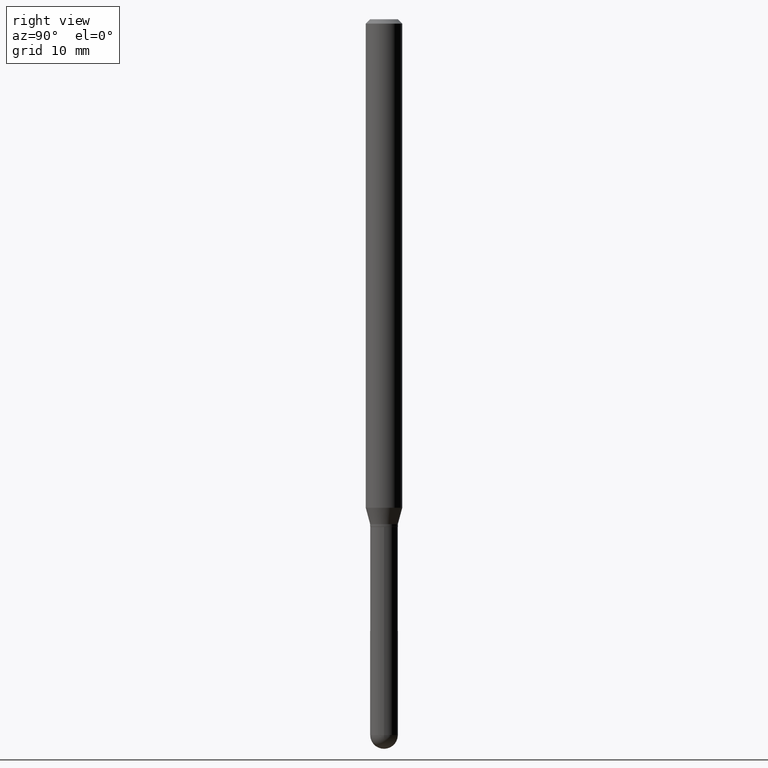
[diagram: clean part render]
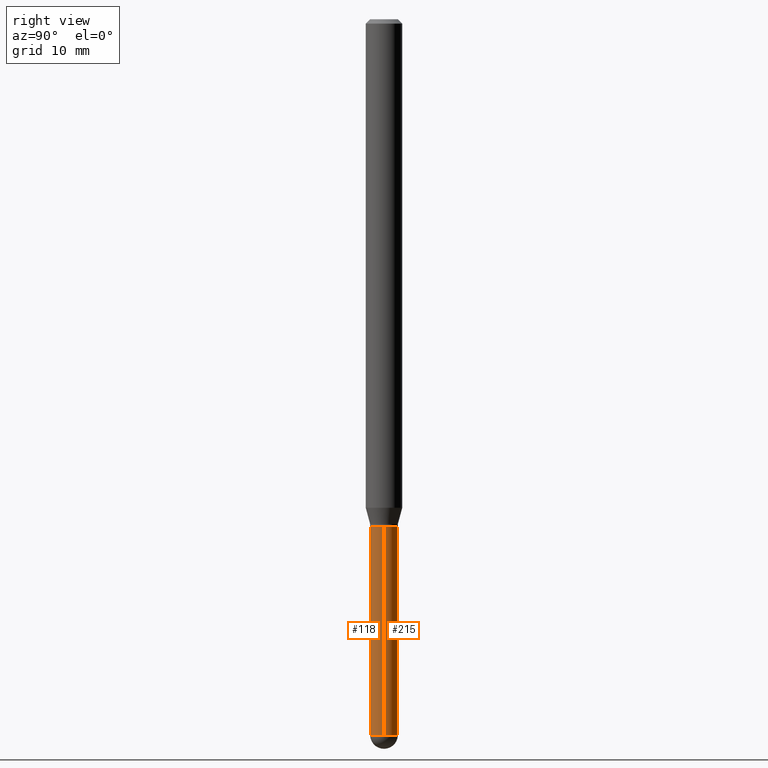
[diagram: same view with one multi-face feature highlighted, each face labeled with its STEP entity id]
A machine part, right view. The highlighted faces form ONE feature: a constant-radius fillet chain: 2 tangent blend faces with common blend radius 1.2065 mm. The faces share edges in the B-rep.
Their STEP definitions:
[1] entity #215 (Cylinder):
#7 = DIRECTION ( 'NONE',  ( -2.445468806185136877E-29, 3.491481338843145188E-15, 1.000000000000000000 ) ) ;
#30 = CARTESIAN_POINT ( 'NONE',  ( 0.000000000000000000, 0.000000000000000000, 0.000000000000000000 ) ) ;
#38 = LINE ( 'NONE', #351, #449 ) ;
#84 = DIRECTION ( 'NONE',  ( 1.000000000000000000, -6.982962677686280910E-15, 0.000000000000000000 ) ) ;
#86 = CIRCLE ( 'NONE', #212, 0.04750000000000000749 ) ;
#111 = FACE_OUTER_BOUND ( 'NONE', #477, .T. ) ;
#120 = ORIENTED_EDGE ( 'NONE', *, *, #414, .T. ) ;
#139 = DIRECTION ( 'NONE',  ( -2.445468806185136877E-29, 3.491481338843145188E-15, 1.000000000000000000 ) ) ;
#146 = CARTESIAN_POINT ( 'NONE',  ( -0.04750000000000000749, -6.981509957063897703E-15, -2.452500000000000124 ) ) ;
#161 = ORIENTED_EDGE ( 'NONE', *, *, #352, .F. ) ;
#170 = AXIS2_PLACEMENT_3D ( 'NONE', #30, #427, #340 ) ;
#189 = VERTEX_POINT ( 'NONE', #467 ) ;
#212 = AXIS2_PLACEMENT_3D ( 'NONE', #387, #474, #273 ) ;
#215 = ADVANCED_FACE ( 'NONE', ( #111 ), #217, .T. ) ;
#217 = CYLINDRICAL_SURFACE ( 'NONE', #170, 0.04750000000000000749 ) ;
#227 = DIRECTION ( 'NONE',  ( -2.445468806185136597E-29, 3.491481338843145583E-15, 1.000000000000000000 ) ) ;
#231 = CARTESIAN_POINT ( 'NONE',  ( 4.255115722762138620E-29, -6.075177529587074600E-15, -1.740000000000000213 ) ) ;
#264 = DIRECTION ( 'NONE',  ( -2.445468806185136597E-29, 3.491481338843145583E-15, 1.000000000000000000 ) ) ;
#267 = CARTESIAN_POINT ( 'NONE',  ( 5.997512247169047773E-29, -8.562857983512815004E-15, -2.452500000000000124 ) ) ;
#268 = EDGE_CURVE ( 'NONE', #487, #348, #502, .T. ) ;
#269 = VERTEX_POINT ( 'NONE', #146 ) ;
#273 = DIRECTION ( 'NONE',  ( 1.000000000000000000, -6.982962677686280910E-15, 0.000000000000000000 ) ) ;
#274 = VERTEX_POINT ( 'NONE', #291 ) ;
#275 = CIRCLE ( 'NONE', #475, 0.04749999999999999362 ) ;
#291 = CARTESIAN_POINT ( 'NONE',  ( 3.316907271901575630E-16, 0.04749999999999143102, -2.452500000000000568 ) ) ;
#292 = CIRCLE ( 'NONE', #359, 0.04750000000000000749 ) ;
#334 = EDGE_CURVE ( 'NONE', #487, #274, #86, .T. ) ;
#340 = DIRECTION ( 'NONE',  ( 1.000000000000000000, -6.982962677686266711E-15, 4.876176775795934672E-29 ) ) ;
#348 = VERTEX_POINT ( 'NONE', #438 ) ;
#351 = CARTESIAN_POINT ( 'NONE',  ( -0.04750000000000000749, 3.375077994860476415E-16, -2.336494167871080260E-30 ) ) ;
#352 = EDGE_CURVE ( 'NONE', #348, #189, #275, .T. ) ;
#359 = AXIS2_PLACEMENT_3D ( 'NONE', #267, #227, #84 ) ;
#372 = EDGE_CURVE ( 'NONE', #274, #269, #292, .T. ) ;
#378 = CARTESIAN_POINT ( 'NONE',  ( 0.04750000000000000749, -3.316907271900977082E-16, 2.316183968503069432E-30 ) ) ;
#385 = ORIENTED_EDGE ( 'NONE', *, *, #334, .T. ) ;
#387 = CARTESIAN_POINT ( 'NONE',  ( 5.997512247169047773E-29, -8.562857983512815004E-15, -2.452500000000000124 ) ) ;
#408 = ORIENTED_EDGE ( 'NONE', *, *, #372, .T. ) ;
#414 = EDGE_CURVE ( 'NONE', #269, #189, #38, .T. ) ;
#423 = VECTOR ( 'NONE', #139, 39.37007874015748143 ) ;
#427 = DIRECTION ( 'NONE',  ( -2.445468806185136597E-29, 3.491481338843145583E-15, 1.000000000000000000 ) ) ;
#435 = DIRECTION ( 'NONE',  ( 1.000000000000000000, -6.982962677686261977E-15, 0.000000000000000000 ) ) ;
#438 = CARTESIAN_POINT ( 'NONE',  ( 0.04749999999999999362, -6.406868256777172111E-15, -1.740000000000000213 ) ) ;
#449 = VECTOR ( 'NONE', #7, 39.37007874015748143 ) ;
#467 = CARTESIAN_POINT ( 'NONE',  ( -0.04749999999999999362, -6.981509957063897703E-15, -1.740000000000000213 ) ) ;
#474 = DIRECTION ( 'NONE',  ( -2.445468806185136597E-29, 3.491481338843145583E-15, 1.000000000000000000 ) ) ;
#475 = AXIS2_PLACEMENT_3D ( 'NONE', #231, #264, #435 ) ;
#477 = EDGE_LOOP ( 'NONE', ( #408, #120, #161, #511, #385 ) ) ;
#487 = VERTEX_POINT ( 'NONE', #498 ) ;
#498 = CARTESIAN_POINT ( 'NONE',  ( 0.04750000000000000749, -7.650708483740042707E-15, -2.452500000000000124 ) ) ;
#502 = LINE ( 'NONE', #378, #423 ) ;
#511 = ORIENTED_EDGE ( 'NONE', *, *, #268, .F. ) ;
[2] entity #118 (Cylinder):
#5 = AXIS2_PLACEMENT_3D ( 'NONE', #134, #452, #204 ) ;
#7 = DIRECTION ( 'NONE',  ( -2.445468806185136877E-29, 3.491481338843145188E-15, 1.000000000000000000 ) ) ;
#21 = CYLINDRICAL_SURFACE ( 'NONE', #5, 0.04750000000000000749 ) ;
#27 = VERTEX_POINT ( 'NONE', #380 ) ;
#31 = AXIS2_PLACEMENT_3D ( 'NONE', #331, #34, #328 ) ;
#33 = CARTESIAN_POINT ( 'NONE',  ( 4.255115722762138620E-29, -6.075177529587074600E-15, -1.740000000000000213 ) ) ;
#34 = DIRECTION ( 'NONE',  ( -2.445468806185136597E-29, 3.491481338843145583E-15, 1.000000000000000000 ) ) ;
#38 = LINE ( 'NONE', #351, #449 ) ;
#46 = DIRECTION ( 'NONE',  ( 1.000000000000000000, -6.982962677686280910E-15, 0.000000000000000000 ) ) ;
#47 = ORIENTED_EDGE ( 'NONE', *, *, #64, .F. ) ;
#57 = ORIENTED_EDGE ( 'NONE', *, *, #208, .T. ) ;
#59 = ORIENTED_EDGE ( 'NONE', *, *, #268, .T. ) ;
#64 = EDGE_CURVE ( 'NONE', #189, #348, #197, .T. ) ;
#92 = CARTESIAN_POINT ( 'NONE',  ( 5.997512247169047773E-29, -8.562857983512815004E-15, -2.452500000000000124 ) ) ;
#102 = AXIS2_PLACEMENT_3D ( 'NONE', #33, #459, #178 ) ;
#118 = ADVANCED_FACE ( 'NONE', ( #411 ), #21, .T. ) ;
#134 = CARTESIAN_POINT ( 'NONE',  ( 0.000000000000000000, 0.000000000000000000, 0.000000000000000000 ) ) ;
#139 = DIRECTION ( 'NONE',  ( -2.445468806185136877E-29, 3.491481338843145188E-15, 1.000000000000000000 ) ) ;
#146 = CARTESIAN_POINT ( 'NONE',  ( -0.04750000000000000749, -6.981509957063897703E-15, -2.452500000000000124 ) ) ;
#159 = EDGE_CURVE ( 'NONE', #269, #27, #310, .T. ) ;
#178 = DIRECTION ( 'NONE',  ( 1.000000000000000000, -6.982962677686261977E-15, 0.000000000000000000 ) ) ;
#189 = VERTEX_POINT ( 'NONE', #467 ) ;
#197 = CIRCLE ( 'NONE', #102, 0.04749999999999999362 ) ;
#204 = DIRECTION ( 'NONE',  ( 1.000000000000000000, -6.982962677686266711E-15, 4.876176775795934672E-29 ) ) ;
#208 = EDGE_CURVE ( 'NONE', #27, #487, #391, .T. ) ;
#268 = EDGE_CURVE ( 'NONE', #487, #348, #502, .T. ) ;
#269 = VERTEX_POINT ( 'NONE', #146 ) ;
#284 = ORIENTED_EDGE ( 'NONE', *, *, #414, .F. ) ;
#308 = ORIENTED_EDGE ( 'NONE', *, *, #159, .T. ) ;
#310 = CIRCLE ( 'NONE', #317, 0.04750000000000000749 ) ;
#317 = AXIS2_PLACEMENT_3D ( 'NONE', #92, #400, #46 ) ;
#318 = EDGE_LOOP ( 'NONE', ( #284, #308, #57, #59, #47 ) ) ;
#328 = DIRECTION ( 'NONE',  ( 1.000000000000000000, -6.982962677686280910E-15, 0.000000000000000000 ) ) ;
#331 = CARTESIAN_POINT ( 'NONE',  ( 5.997512247169047773E-29, -8.562857983512815004E-15, -2.452500000000000124 ) ) ;
#348 = VERTEX_POINT ( 'NONE', #438 ) ;
#351 = CARTESIAN_POINT ( 'NONE',  ( -0.04750000000000000749, 3.375077994860476415E-16, -2.336494167871080260E-30 ) ) ;
#378 = CARTESIAN_POINT ( 'NONE',  ( 0.04750000000000000749, -3.316907271900977082E-16, 2.316183968503069432E-30 ) ) ;
#380 = CARTESIAN_POINT ( 'NONE',  ( -3.375077994859875895E-16, -0.04750000000000855621, -2.452499999999999680 ) ) ;
#391 = CIRCLE ( 'NONE', #31, 0.04750000000000000749 ) ;
#400 = DIRECTION ( 'NONE',  ( -2.445468806185136597E-29, 3.491481338843145583E-15, 1.000000000000000000 ) ) ;
#411 = FACE_OUTER_BOUND ( 'NONE', #318, .T. ) ;
#414 = EDGE_CURVE ( 'NONE', #269, #189, #38, .T. ) ;
#423 = VECTOR ( 'NONE', #139, 39.37007874015748143 ) ;
#438 = CARTESIAN_POINT ( 'NONE',  ( 0.04749999999999999362, -6.406868256777172111E-15, -1.740000000000000213 ) ) ;
#449 = VECTOR ( 'NONE', #7, 39.37007874015748143 ) ;
#452 = DIRECTION ( 'NONE',  ( -2.445468806185136597E-29, 3.491481338843145583E-15, 1.000000000000000000 ) ) ;
#459 = DIRECTION ( 'NONE',  ( -2.445468806185136597E-29, 3.491481338843145583E-15, 1.000000000000000000 ) ) ;
#467 = CARTESIAN_POINT ( 'NONE',  ( -0.04749999999999999362, -6.981509957063897703E-15, -1.740000000000000213 ) ) ;
#487 = VERTEX_POINT ( 'NONE', #498 ) ;
#498 = CARTESIAN_POINT ( 'NONE',  ( 0.04750000000000000749, -7.650708483740042707E-15, -2.452500000000000124 ) ) ;
#502 = LINE ( 'NONE', #378, #423 ) ;